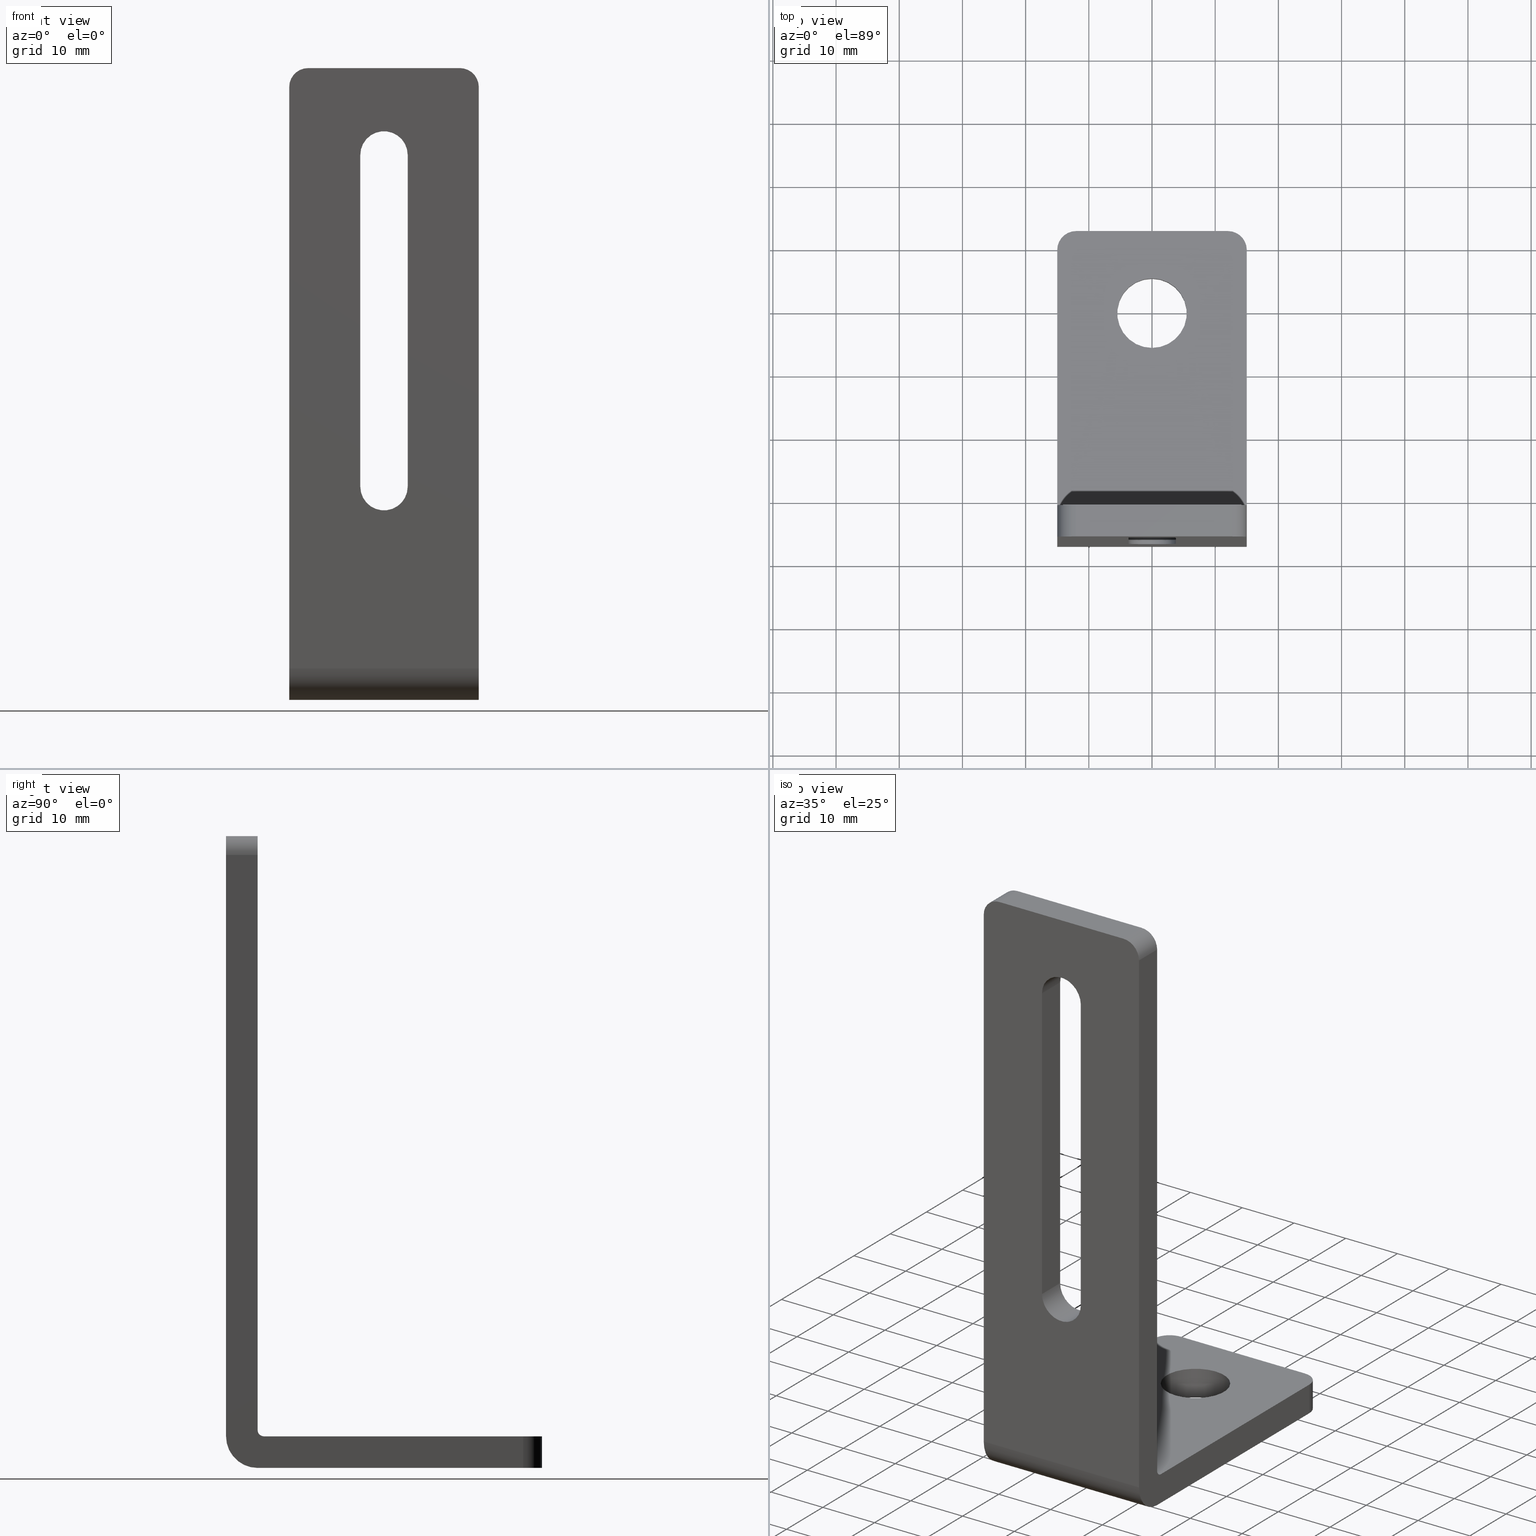
[diagram: canonical four-view strip — front | top / right | iso, engineering-drawing reading convention]
A machine part, canonical four-view strip (front | top / right | iso — engineering-drawing reading convention). The complete STEP part file that produces these views, byte-faithful:
ISO-10303-21;
HEADER;
/****************************************************************
 * Generated by software with PDE/Lib inside                    *
 * PDElib Version v4.4, created Mon 02/23/2004                  *
 * International Technegroup Inc. (www.iti-oh.com)              *
 ****************************************************************/
FILE_DESCRIPTION(('STEP AP203'),'2;1');
FILE_NAME('17.004.00.stp','2011-03-28T17:23:40',(''),(''),'2009.3.110','THINKDESIGN','');
FILE_SCHEMA(('CONFIG_CONTROL_DESIGN'));
ENDSEC;
DATA;
#2=CARTESIAN_POINT('',(-15.0,-30.999999999998181,6.000000000000002));
#3=DIRECTION('',(-1.0,6.123234E-017,-3.749399E-033));
#4=DIRECTION('',(-1.232595E-032,-2.449294E-016,-1.0));
#5=AXIS2_PLACEMENT_3D('',#2,#3,#4);
#6=CYLINDRICAL_SURFACE('',#5,1.000000000000078);
#7=CARTESIAN_POINT('',(-15.0,-30.999999999998181,5.000000000000002));
#8=VERTEX_POINT('',#7);
#9=CARTESIAN_POINT('',(-15.0,-31.999999999998181,6.000000000000002));
#10=VERTEX_POINT('',#9);
#11=CARTESIAN_POINT('',(-15.0,-30.999999999998181,6.000000000000002));
#12=DIRECTION('',(-1.0,6.123234E-017,-3.749399E-033));
#13=DIRECTION('',(6.123234E-017,1.0,-6.123234E-017));
#14=AXIS2_PLACEMENT_3D('',#11,#12,#13);
#15=CIRCLE('',#14,1.000000000000078);
#16=EDGE_CURVE('',#8,#10,#15,.T.);
#17=ORIENTED_EDGE('',*,*,#16,.T.);
#18=CARTESIAN_POINT('',(15.0,-31.999999999998181,6.000000000000002));
#19=VERTEX_POINT('',#18);
#20=CARTESIAN_POINT('',(-15.0,-31.999999999998181,6.000000000000002));
#21=DIRECTION('',(1.0,0.0,0.0));
#22=VECTOR('',#21,30.0);
#23=LINE('',#20,#22);
#24=EDGE_CURVE('',#10,#19,#23,.T.);
#25=ORIENTED_EDGE('',*,*,#24,.T.);
#26=CARTESIAN_POINT('',(15.0,-30.999999999998181,5.000000000000002));
#27=VERTEX_POINT('',#26);
#28=CARTESIAN_POINT('',(15.0,-30.999999999998181,6.000000000000002));
#29=DIRECTION('',(-1.0,6.123234E-017,-3.749399E-033));
#30=DIRECTION('',(6.123234E-017,1.0,-6.123234E-017));
#31=AXIS2_PLACEMENT_3D('',#28,#29,#30);
#32=CIRCLE('',#31,1.000000000000078);
#33=EDGE_CURVE('',#27,#19,#32,.T.);
#34=ORIENTED_EDGE('',*,*,#33,.F.);
#35=CARTESIAN_POINT('',(-15.0,-30.999999999998181,5.000000000000002));
#36=DIRECTION('',(1.0,0.0,0.0));
#37=VECTOR('',#36,30.0);
#38=LINE('',#35,#37);
#39=EDGE_CURVE('',#8,#27,#38,.T.);
#40=ORIENTED_EDGE('',*,*,#39,.F.);
#41=EDGE_LOOP('',(#17,#25,#34,#40));
#42=FACE_OUTER_BOUND('',#41,.T.);
#43=ADVANCED_FACE('',(#42),#6,.F.);
#44=CARTESIAN_POINT('',(-15.0,-31.999999999998181,5.000000000000002));
#45=DIRECTION('',(1.0,-6.123234E-017,3.749399E-033));
#46=DIRECTION('',(6.123234E-017,1.0,-6.123234E-017));
#47=AXIS2_PLACEMENT_3D('',#44,#45,#46);
#48=CYLINDRICAL_SURFACE('',#47,5.0);
#49=CARTESIAN_POINT('',(-15.0,-36.999999999998181,5.000000000000003));
#50=VERTEX_POINT('',#49);
#51=CARTESIAN_POINT('',(-15.0,-31.999999999998181,1.959435E-015));
#52=VERTEX_POINT('',#51);
#53=CARTESIAN_POINT('',(-15.0,-31.999999999998181,5.000000000000002));
#54=DIRECTION('',(1.0,-6.123234E-017,3.749399E-033));
#55=DIRECTION('',(6.123234E-017,1.0,-6.123234E-017));
#56=AXIS2_PLACEMENT_3D('',#53,#54,#55);
#57=CIRCLE('',#56,5.0);
#58=EDGE_CURVE('',#50,#52,#57,.T.);
#59=ORIENTED_EDGE('',*,*,#58,.T.);
#60=CARTESIAN_POINT('',(15.0,-31.999999999998181,1.959435E-015));
#61=VERTEX_POINT('',#60);
#62=CARTESIAN_POINT('',(-15.0,-31.999999999998181,1.959435E-015));
#63=DIRECTION('',(1.0,0.0,0.0));
#64=VECTOR('',#63,30.0);
#65=LINE('',#62,#64);
#66=EDGE_CURVE('',#52,#61,#65,.T.);
#67=ORIENTED_EDGE('',*,*,#66,.T.);
#68=CARTESIAN_POINT('',(15.0,-36.999999999998181,5.000000000000003));
#69=VERTEX_POINT('',#68);
#70=CARTESIAN_POINT('',(15.0,-31.999999999998181,5.000000000000002));
#71=DIRECTION('',(1.0,-6.123234E-017,3.749399E-033));
#72=DIRECTION('',(6.123234E-017,1.0,-6.123234E-017));
#73=AXIS2_PLACEMENT_3D('',#70,#71,#72);
#74=CIRCLE('',#73,5.0);
#75=EDGE_CURVE('',#69,#61,#74,.T.);
#76=ORIENTED_EDGE('',*,*,#75,.F.);
#77=CARTESIAN_POINT('',(-15.0,-36.999999999998181,5.000000000000003));
#78=DIRECTION('',(1.0,0.0,0.0));
#79=VECTOR('',#78,30.0);
#80=LINE('',#77,#79);
#81=EDGE_CURVE('',#50,#69,#80,.T.);
#82=ORIENTED_EDGE('',*,*,#81,.F.);
#83=EDGE_LOOP('',(#59,#67,#76,#82));
#84=FACE_OUTER_BOUND('',#83,.T.);
#85=ADVANCED_FACE('',(#84),#48,.T.);
#86=CARTESIAN_POINT('',(0.0,18.000663757326041,33.750000000000000));
#87=DIRECTION('',(0.0,-1.0,6.123234E-017));
#88=DIRECTION('',(-1.0,-7.498799E-033,-1.224647E-016));
#89=AXIS2_PLACEMENT_3D('',#86,#87,#88);
#90=CYLINDRICAL_SURFACE('',#89,3.750000000000000);
#91=CARTESIAN_POINT('',(-3.750000000000000,-31.999999999998170,33.750000000000000));
#92=VERTEX_POINT('',#91);
#93=CARTESIAN_POINT('',(-3.750000000000000,-36.999999999998181,33.750000000000000));
#94=VERTEX_POINT('',#93);
#95=CARTESIAN_POINT('',(-3.750000000000000,-31.999999999998170,33.750000000000000));
#96=DIRECTION('',(0.0,-1.0,0.0));
#97=VECTOR('',#96,5.000000000000011);
#98=LINE('',#95,#97);
#99=EDGE_CURVE('',#92,#94,#98,.T.);
#100=ORIENTED_EDGE('',*,*,#99,.T.);
#101=CARTESIAN_POINT('',(3.750000000000000,-36.999999999998181,33.750000000000000));
#102=VERTEX_POINT('',#101);
#103=CARTESIAN_POINT('',(0.0,-36.999999999998181,33.750000000000000));
#104=DIRECTION('',(0.0,-1.0,6.123234E-017));
#105=DIRECTION('',(1.0,0.0,0.0));
#106=AXIS2_PLACEMENT_3D('',#103,#104,#105);
#107=CIRCLE('',#106,3.750000000000000);
#108=EDGE_CURVE('',#94,#102,#107,.T.);
#109=ORIENTED_EDGE('',*,*,#108,.T.);
#110=CARTESIAN_POINT('',(3.750000000000000,-31.999999999998170,33.750000000000000));
#111=VERTEX_POINT('',#110);
#112=CARTESIAN_POINT('',(3.750000000000000,-31.999999999998170,33.750000000000000));
#113=DIRECTION('',(0.0,-1.0,0.0));
#114=VECTOR('',#113,5.000000000000011);
#115=LINE('',#112,#114);
#116=EDGE_CURVE('',#111,#102,#115,.T.);
#117=ORIENTED_EDGE('',*,*,#116,.F.);
#118=CARTESIAN_POINT('',(0.0,-31.999999999998170,33.750000000000000));
#119=DIRECTION('',(0.0,1.0,-6.123234E-017));
#120=DIRECTION('',(1.0,0.0,0.0));
#121=AXIS2_PLACEMENT_3D('',#118,#119,#120);
#122=CIRCLE('',#121,3.750000000000000);
#123=EDGE_CURVE('',#111,#92,#122,.T.);
#124=ORIENTED_EDGE('',*,*,#123,.T.);
#125=EDGE_LOOP('',(#100,#109,#117,#124));
#126=FACE_OUTER_BOUND('',#125,.T.);
#127=ADVANCED_FACE('',(#126),#90,.F.);
#128=CARTESIAN_POINT('',(3.750000000000000,18.000663757326041,33.750000000000000));
#129=DIRECTION('',(1.0,0.0,0.0));
#130=DIRECTION('',(0.0,0.0,1.0));
#131=AXIS2_PLACEMENT_3D('',#128,#129,#130);
#132=PLANE('',#131);
#133=ORIENTED_EDGE('',*,*,#116,.T.);
#134=CARTESIAN_POINT('',(3.750000000000000,-36.999999999998174,86.250000000000000));
#135=VERTEX_POINT('',#134);
#136=CARTESIAN_POINT('',(3.750000000000000,-36.999999999998181,33.750000000000000));
#137=DIRECTION('',(0.0,0.0,1.0));
#138=VECTOR('',#137,52.500000000000000);
#139=LINE('',#136,#138);
#140=EDGE_CURVE('',#102,#135,#139,.T.);
#141=ORIENTED_EDGE('',*,*,#140,.T.);
#142=CARTESIAN_POINT('',(3.750000000000000,-31.999999999998170,86.250000000000000));
#143=VERTEX_POINT('',#142);
#144=CARTESIAN_POINT('',(3.750000000000000,-31.999999999998170,86.250000000000000));
#145=DIRECTION('',(0.0,-1.0,0.0));
#146=VECTOR('',#145,5.000000000000011);
#147=LINE('',#144,#146);
#148=EDGE_CURVE('',#143,#135,#147,.T.);
#149=ORIENTED_EDGE('',*,*,#148,.F.);
#150=CARTESIAN_POINT('',(3.750000000000000,-31.999999999998170,33.750000000000000));
#151=DIRECTION('',(0.0,0.0,1.0));
#152=VECTOR('',#151,52.500000000000000);
#153=LINE('',#150,#152);
#154=EDGE_CURVE('',#111,#143,#153,.T.);
#155=ORIENTED_EDGE('',*,*,#154,.F.);
#156=EDGE_LOOP('',(#133,#141,#149,#155));
#157=FACE_OUTER_BOUND('',#156,.T.);
#158=ADVANCED_FACE('',(#157),#132,.F.);
#159=CARTESIAN_POINT('',(0.0,18.000663757326041,86.250000000000000));
#160=DIRECTION('',(0.0,-1.0,6.123234E-017));
#161=DIRECTION('',(1.0,0.0,0.0));
#162=AXIS2_PLACEMENT_3D('',#159,#160,#161);
#163=CYLINDRICAL_SURFACE('',#162,3.750000000000000);
#164=ORIENTED_EDGE('',*,*,#148,.T.);
#165=CARTESIAN_POINT('',(-3.750000000000000,-36.999999999998174,86.250000000000000));
#166=VERTEX_POINT('',#165);
#167=CARTESIAN_POINT('',(0.0,-36.999999999998174,86.250000000000000));
#168=DIRECTION('',(0.0,-1.0,6.123234E-017));
#169=DIRECTION('',(1.0,0.0,0.0));
#170=AXIS2_PLACEMENT_3D('',#167,#168,#169);
#171=CIRCLE('',#170,3.750000000000000);
#172=EDGE_CURVE('',#135,#166,#171,.T.);
#173=ORIENTED_EDGE('',*,*,#172,.T.);
#174=CARTESIAN_POINT('',(-3.750000000000000,-31.999999999998170,86.250000000000000));
#175=VERTEX_POINT('',#174);
#176=CARTESIAN_POINT('',(-3.750000000000000,-31.999999999998170,86.250000000000000));
#177=DIRECTION('',(0.0,-1.0,0.0));
#178=VECTOR('',#177,5.000000000000011);
#179=LINE('',#176,#178);
#180=EDGE_CURVE('',#175,#166,#179,.T.);
#181=ORIENTED_EDGE('',*,*,#180,.F.);
#182=CARTESIAN_POINT('',(0.0,-31.999999999998170,86.250000000000000));
#183=DIRECTION('',(0.0,1.0,-6.123234E-017));
#184=DIRECTION('',(1.0,0.0,0.0));
#185=AXIS2_PLACEMENT_3D('',#182,#183,#184);
#186=CIRCLE('',#185,3.750000000000000);
#187=EDGE_CURVE('',#175,#143,#186,.T.);
#188=ORIENTED_EDGE('',*,*,#187,.T.);
#189=EDGE_LOOP('',(#164,#173,#181,#188));
#190=FACE_OUTER_BOUND('',#189,.T.);
#191=ADVANCED_FACE('',(#190),#163,.F.);
#192=CARTESIAN_POINT('',(-3.750000000000000,18.000663757326041,86.250000000000000));
#193=DIRECTION('',(-1.0,0.0,0.0));
#194=DIRECTION('',(0.0,0.0,-1.0));
#195=AXIS2_PLACEMENT_3D('',#192,#193,#194);
#196=PLANE('',#195);
#197=CARTESIAN_POINT('',(-3.750000000000000,-31.999999999998170,33.750000000000000));
#198=DIRECTION('',(0.0,0.0,1.0));
#199=VECTOR('',#198,52.500000000000000);
#200=LINE('',#197,#199);
#201=EDGE_CURVE('',#92,#175,#200,.T.);
#202=ORIENTED_EDGE('',*,*,#201,.T.);
#203=ORIENTED_EDGE('',*,*,#180,.T.);
#204=CARTESIAN_POINT('',(-3.750000000000000,-36.999999999998181,33.750000000000000));
#205=DIRECTION('',(0.0,0.0,1.0));
#206=VECTOR('',#205,52.500000000000000);
#207=LINE('',#204,#206);
#208=EDGE_CURVE('',#94,#166,#207,.T.);
#209=ORIENTED_EDGE('',*,*,#208,.F.);
#210=ORIENTED_EDGE('',*,*,#99,.F.);
#211=EDGE_LOOP('',(#202,#203,#209,#210));
#212=FACE_OUTER_BOUND('',#211,.T.);
#213=ADVANCED_FACE('',(#212),#196,.F.);
#214=CARTESIAN_POINT('',(0.0,3.061617E-016,5.0));
#215=DIRECTION('',(0.0,6.123234E-017,1.0));
#216=DIRECTION('',(-6.123234E-017,-1.0,6.123234E-017));
#217=AXIS2_PLACEMENT_3D('',#214,#215,#216);
#218=CYLINDRICAL_SURFACE('',#217,5.500000000000000);
#219=CARTESIAN_POINT('',(0.0,-5.500000000000000,5.0));
#220=VERTEX_POINT('',#219);
#221=CARTESIAN_POINT('',(0.0,-5.500000000000000,3.367779E-016));
#222=VERTEX_POINT('',#221);
#223=CARTESIAN_POINT('',(0.0,-5.500000000000000,5.0));
#224=DIRECTION('',(0.0,0.0,-1.0));
#225=VECTOR('',#224,5.0);
#226=LINE('',#223,#225);
#227=EDGE_CURVE('',#220,#222,#226,.T.);
#228=ORIENTED_EDGE('',*,*,#227,.T.);
#229=CARTESIAN_POINT('',(3.367779E-016,5.500000000000000,-3.367779E-016));
#230=VERTEX_POINT('',#229);
#231=CARTESIAN_POINT('',(0.0,0.0,0.0));
#232=DIRECTION('',(0.0,6.123234E-017,1.0));
#233=DIRECTION('',(-6.123234E-017,-1.0,6.123234E-017));
#234=AXIS2_PLACEMENT_3D('',#231,#232,#233);
#235=CIRCLE('',#234,5.500000000000000);
#236=EDGE_CURVE('',#230,#222,#235,.T.);
#237=ORIENTED_EDGE('',*,*,#236,.F.);
#238=CARTESIAN_POINT('',(0.0,0.0,0.0));
#239=DIRECTION('',(0.0,6.123234E-017,1.0));
#240=DIRECTION('',(-6.123234E-017,-1.0,6.123234E-017));
#241=AXIS2_PLACEMENT_3D('',#238,#239,#240);
#242=CIRCLE('',#241,5.500000000000000);
#243=EDGE_CURVE('',#222,#230,#242,.T.);
#244=ORIENTED_EDGE('',*,*,#243,.F.);
#245=ORIENTED_EDGE('',*,*,#227,.F.);
#246=CARTESIAN_POINT('',(3.367779E-016,5.500000000000000,5.0));
#247=VERTEX_POINT('',#246);
#248=CARTESIAN_POINT('',(-2.736911E-048,3.061617E-016,5.0));
#249=DIRECTION('',(0.0,6.123234E-017,1.0));
#250=DIRECTION('',(-6.123234E-017,-1.0,6.123234E-017));
#251=AXIS2_PLACEMENT_3D('',#248,#249,#250);
#252=CIRCLE('',#251,5.500000000000000);
#253=EDGE_CURVE('',#220,#247,#252,.T.);
#254=ORIENTED_EDGE('',*,*,#253,.T.);
#255=CARTESIAN_POINT('',(-2.736911E-048,3.061617E-016,5.0));
#256=DIRECTION('',(0.0,6.123234E-017,1.0));
#257=DIRECTION('',(-6.123234E-017,-1.0,6.123234E-017));
#258=AXIS2_PLACEMENT_3D('',#255,#256,#257);
#259=CIRCLE('',#258,5.500000000000000);
#260=EDGE_CURVE('',#247,#220,#259,.T.);
#261=ORIENTED_EDGE('',*,*,#260,.T.);
#262=EDGE_LOOP('',(#228,#237,#244,#245,#254,#261));
#263=FACE_OUTER_BOUND('',#262,.T.);
#264=ADVANCED_FACE('',(#263),#218,.F.);
#265=CARTESIAN_POINT('',(-15.0,13.000000000001819,4.999999999999999));
#266=DIRECTION('',(0.0,0.0,1.0));
#267=DIRECTION('',(0.0,-1.0,0.0));
#268=AXIS2_PLACEMENT_3D('',#265,#266,#267);
#269=PLANE('',#268);
#270=CARTESIAN_POINT('',(12.0,13.000000000001819,4.999999999999999));
#271=VERTEX_POINT('',#270);
#272=CARTESIAN_POINT('',(15.0,10.000000000001819,4.999999999999999));
#273=VERTEX_POINT('',#272);
#274=CARTESIAN_POINT('',(12.0,10.000000000001819,4.999999999999999));
#275=DIRECTION('',(0.0,-6.123234E-017,-1.0));
#276=DIRECTION('',(0.0,1.0,-6.123234E-017));
#277=AXIS2_PLACEMENT_3D('',#274,#275,#276);
#278=CIRCLE('',#277,3.0);
#279=EDGE_CURVE('',#271,#273,#278,.T.);
#280=ORIENTED_EDGE('',*,*,#279,.F.);
#281=CARTESIAN_POINT('',(-12.0,13.000000000001819,4.999999999999999));
#282=VERTEX_POINT('',#281);
#283=CARTESIAN_POINT('',(-12.0,13.000000000001819,4.999999999999999));
#284=DIRECTION('',(1.0,0.0,0.0));
#285=VECTOR('',#284,24.0);
#286=LINE('',#283,#285);
#287=EDGE_CURVE('',#282,#271,#286,.T.);
#288=ORIENTED_EDGE('',*,*,#287,.F.);
#289=CARTESIAN_POINT('',(-15.0,10.000000000001819,4.999999999999999));
#290=VERTEX_POINT('',#289);
#291=CARTESIAN_POINT('',(-12.0,10.000000000001819,4.999999999999999));
#292=DIRECTION('',(0.0,6.123234E-017,1.0));
#293=DIRECTION('',(0.0,1.0,-6.123234E-017));
#294=AXIS2_PLACEMENT_3D('',#291,#292,#293);
#295=CIRCLE('',#294,3.0);
#296=EDGE_CURVE('',#282,#290,#295,.T.);
#297=ORIENTED_EDGE('',*,*,#296,.T.);
#298=CARTESIAN_POINT('',(-14.999999999999998,10.000000000001819,4.999999999999999));
#299=DIRECTION('',(0.0,-1.0,0.0));
#300=VECTOR('',#299,41.0);
#301=LINE('',#298,#300);
#302=EDGE_CURVE('',#290,#8,#301,.T.);
#303=ORIENTED_EDGE('',*,*,#302,.T.);
#304=ORIENTED_EDGE('',*,*,#39,.T.);
#305=CARTESIAN_POINT('',(15.000000000000002,10.000000000001819,4.999999999999999));
#306=DIRECTION('',(0.0,-1.0,0.0));
#307=VECTOR('',#306,41.0);
#308=LINE('',#305,#307);
#309=EDGE_CURVE('',#273,#27,#308,.T.);
#310=ORIENTED_EDGE('',*,*,#309,.F.);
#311=EDGE_LOOP('',(#280,#288,#297,#303,#304,#310));
#312=FACE_OUTER_BOUND('',#311,.T.);
#313=ORIENTED_EDGE('',*,*,#260,.F.);
#314=ORIENTED_EDGE('',*,*,#253,.F.);
#315=EDGE_LOOP('',(#313,#314));
#316=FACE_BOUND('',#315,.T.);
#317=ADVANCED_FACE('',(#312,#316),#269,.T.);
#318=CARTESIAN_POINT('',(12.0,10.000000000001819,-6.123234E-016));
#319=DIRECTION('',(0.0,-6.123234E-017,-1.0));
#320=DIRECTION('',(0.0,1.0,-6.123234E-017));
#321=AXIS2_PLACEMENT_3D('',#318,#319,#320);
#322=CYLINDRICAL_SURFACE('',#321,3.0);
#323=CARTESIAN_POINT('',(12.0,13.000000000001819,-7.960204E-016));
#324=VERTEX_POINT('',#323);
#325=CARTESIAN_POINT('',(12.0,13.000000000001819,-7.960204E-016));
#326=DIRECTION('',(0.0,0.0,1.0));
#327=VECTOR('',#326,5.0);
#328=LINE('',#325,#327);
#329=EDGE_CURVE('',#324,#271,#328,.T.);
#330=ORIENTED_EDGE('',*,*,#329,.T.);
#331=ORIENTED_EDGE('',*,*,#279,.T.);
#332=CARTESIAN_POINT('',(15.0,10.000000000001819,-6.123234E-016));
#333=VERTEX_POINT('',#332);
#334=CARTESIAN_POINT('',(15.0,10.000000000001819,-6.123234E-016));
#335=DIRECTION('',(0.0,0.0,1.0));
#336=VECTOR('',#335,5.0);
#337=LINE('',#334,#336);
#338=EDGE_CURVE('',#333,#273,#337,.T.);
#339=ORIENTED_EDGE('',*,*,#338,.F.);
#340=CARTESIAN_POINT('',(12.0,10.000000000001819,-6.123234E-016));
#341=DIRECTION('',(0.0,-6.123234E-017,-1.0));
#342=DIRECTION('',(0.0,1.0,-6.123234E-017));
#343=AXIS2_PLACEMENT_3D('',#340,#341,#342);
#344=CIRCLE('',#343,3.0);
#345=EDGE_CURVE('',#324,#333,#344,.T.);
#346=ORIENTED_EDGE('',*,*,#345,.F.);
#347=EDGE_LOOP('',(#330,#331,#339,#346));
#348=FACE_OUTER_BOUND('',#347,.T.);
#349=ADVANCED_FACE('',(#348),#322,.T.);
#350=CARTESIAN_POINT('',(-15.0,-31.999999999998181,1.959435E-015));
#351=DIRECTION('',(0.0,0.0,-1.0));
#352=DIRECTION('',(0.0,1.0,0.0));
#353=AXIS2_PLACEMENT_3D('',#350,#351,#352);
#354=PLANE('',#353);
#355=ORIENTED_EDGE('',*,*,#66,.F.);
#356=CARTESIAN_POINT('',(-15.0,10.000000000001819,-6.123234E-016));
#357=VERTEX_POINT('',#356);
#358=CARTESIAN_POINT('',(-15.000000000000004,-31.999999999998181,1.959435E-015));
#359=DIRECTION('',(0.0,1.0,0.0));
#360=VECTOR('',#359,42.0);
#361=LINE('',#358,#360);
#362=EDGE_CURVE('',#52,#357,#361,.T.);
#363=ORIENTED_EDGE('',*,*,#362,.T.);
#364=CARTESIAN_POINT('',(-12.0,13.000000000001819,-7.960204E-016));
#365=VERTEX_POINT('',#364);
#366=CARTESIAN_POINT('',(-12.0,10.000000000001819,-6.123234E-016));
#367=DIRECTION('',(0.0,6.123234E-017,1.0));
#368=DIRECTION('',(0.0,1.0,-6.123234E-017));
#369=AXIS2_PLACEMENT_3D('',#366,#367,#368);
#370=CIRCLE('',#369,3.0);
#371=EDGE_CURVE('',#365,#357,#370,.T.);
#372=ORIENTED_EDGE('',*,*,#371,.F.);
#373=CARTESIAN_POINT('',(-12.0,13.000000000001819,-7.960204E-016));
#374=DIRECTION('',(1.0,0.0,0.0));
#375=VECTOR('',#374,24.0);
#376=LINE('',#373,#375);
#377=EDGE_CURVE('',#365,#324,#376,.T.);
#378=ORIENTED_EDGE('',*,*,#377,.T.);
#379=ORIENTED_EDGE('',*,*,#345,.T.);
#380=CARTESIAN_POINT('',(14.999999999999996,-31.999999999998181,1.959435E-015));
#381=DIRECTION('',(0.0,1.0,0.0));
#382=VECTOR('',#381,42.0);
#383=LINE('',#380,#382);
#384=EDGE_CURVE('',#61,#333,#383,.T.);
#385=ORIENTED_EDGE('',*,*,#384,.F.);
#386=EDGE_LOOP('',(#355,#363,#372,#378,#379,#385));
#387=FACE_OUTER_BOUND('',#386,.T.);
#388=ORIENTED_EDGE('',*,*,#243,.T.);
#389=ORIENTED_EDGE('',*,*,#236,.T.);
#390=EDGE_LOOP('',(#388,#389));
#391=FACE_BOUND('',#390,.T.);
#392=ADVANCED_FACE('',(#387,#391),#354,.T.);
#393=CARTESIAN_POINT('',(-12.0,10.000000000001819,-6.123234E-016));
#394=DIRECTION('',(0.0,6.123234E-017,1.0));
#395=DIRECTION('',(0.0,1.0,-6.123234E-017));
#396=AXIS2_PLACEMENT_3D('',#393,#394,#395);
#397=CYLINDRICAL_SURFACE('',#396,3.0);
#398=ORIENTED_EDGE('',*,*,#371,.T.);
#399=CARTESIAN_POINT('',(-15.0,10.000000000001819,-6.123234E-016));
#400=DIRECTION('',(0.0,0.0,1.0));
#401=VECTOR('',#400,5.0);
#402=LINE('',#399,#401);
#403=EDGE_CURVE('',#357,#290,#402,.T.);
#404=ORIENTED_EDGE('',*,*,#403,.T.);
#405=ORIENTED_EDGE('',*,*,#296,.F.);
#406=CARTESIAN_POINT('',(-12.0,13.000000000001819,-7.960204E-016));
#407=DIRECTION('',(0.0,0.0,1.0));
#408=VECTOR('',#407,5.0);
#409=LINE('',#406,#408);
#410=EDGE_CURVE('',#365,#282,#409,.T.);
#411=ORIENTED_EDGE('',*,*,#410,.F.);
#412=EDGE_LOOP('',(#398,#404,#405,#411));
#413=FACE_OUTER_BOUND('',#412,.T.);
#414=ADVANCED_FACE('',(#413),#397,.T.);
#415=CARTESIAN_POINT('',(-15.0,13.000000000001819,-7.960204E-016));
#416=DIRECTION('',(0.0,1.0,0.0));
#417=DIRECTION('',(0.0,0.0,1.0));
#418=AXIS2_PLACEMENT_3D('',#415,#416,#417);
#419=PLANE('',#418);
#420=ORIENTED_EDGE('',*,*,#410,.T.);
#421=ORIENTED_EDGE('',*,*,#287,.T.);
#422=ORIENTED_EDGE('',*,*,#329,.F.);
#423=ORIENTED_EDGE('',*,*,#377,.F.);
#424=EDGE_LOOP('',(#420,#421,#422,#423));
#425=FACE_OUTER_BOUND('',#424,.T.);
#426=ADVANCED_FACE('',(#425),#419,.T.);
#427=CARTESIAN_POINT('',(-15.0,-36.999999999998174,100.0));
#428=DIRECTION('',(0.0,-1.0,0.0));
#429=DIRECTION('',(0.0,0.0,-1.0));
#430=AXIS2_PLACEMENT_3D('',#427,#428,#429);
#431=PLANE('',#430);
#432=CARTESIAN_POINT('',(12.0,-36.999999999998174,100.0));
#433=VERTEX_POINT('',#432);
#434=CARTESIAN_POINT('',(15.0,-36.999999999998174,97.0));
#435=VERTEX_POINT('',#434);
#436=CARTESIAN_POINT('',(12.0,-36.999999999998174,97.0));
#437=DIRECTION('',(0.0,1.0,-1.224647E-016));
#438=DIRECTION('',(0.0,1.224647E-016,1.0));
#439=AXIS2_PLACEMENT_3D('',#436,#437,#438);
#440=CIRCLE('',#439,3.0);
#441=EDGE_CURVE('',#433,#435,#440,.T.);
#442=ORIENTED_EDGE('',*,*,#441,.F.);
#443=CARTESIAN_POINT('',(-12.0,-36.999999999998174,100.0));
#444=VERTEX_POINT('',#443);
#445=CARTESIAN_POINT('',(-12.0,-36.999999999998174,100.0));
#446=DIRECTION('',(1.0,0.0,0.0));
#447=VECTOR('',#446,24.0);
#448=LINE('',#445,#447);
#449=EDGE_CURVE('',#444,#433,#448,.T.);
#450=ORIENTED_EDGE('',*,*,#449,.F.);
#451=CARTESIAN_POINT('',(-15.0,-36.999999999998174,97.0));
#452=VERTEX_POINT('',#451);
#453=CARTESIAN_POINT('',(-12.0,-36.999999999998174,97.0));
#454=DIRECTION('',(0.0,-1.0,2.465190E-032));
#455=DIRECTION('',(0.0,2.465190E-032,1.0));
#456=AXIS2_PLACEMENT_3D('',#453,#454,#455);
#457=CIRCLE('',#456,3.0);
#458=EDGE_CURVE('',#444,#452,#457,.T.);
#459=ORIENTED_EDGE('',*,*,#458,.T.);
#460=CARTESIAN_POINT('',(-15.0,-36.999999999998174,97.0));
#461=DIRECTION('',(0.0,0.0,-1.0));
#462=VECTOR('',#461,92.0);
#463=LINE('',#460,#462);
#464=EDGE_CURVE('',#452,#50,#463,.T.);
#465=ORIENTED_EDGE('',*,*,#464,.T.);
#466=ORIENTED_EDGE('',*,*,#81,.T.);
#467=CARTESIAN_POINT('',(15.0,-36.999999999998174,97.0));
#468=DIRECTION('',(0.0,0.0,-1.0));
#469=VECTOR('',#468,92.0);
#470=LINE('',#467,#469);
#471=EDGE_CURVE('',#435,#69,#470,.T.);
#472=ORIENTED_EDGE('',*,*,#471,.F.);
#473=EDGE_LOOP('',(#442,#450,#459,#465,#466,#472));
#474=FACE_OUTER_BOUND('',#473,.T.);
#475=ORIENTED_EDGE('',*,*,#208,.T.);
#476=ORIENTED_EDGE('',*,*,#172,.F.);
#477=ORIENTED_EDGE('',*,*,#140,.F.);
#478=ORIENTED_EDGE('',*,*,#108,.F.);
#479=EDGE_LOOP('',(#475,#476,#477,#478));
#480=FACE_BOUND('',#479,.T.);
#481=ADVANCED_FACE('',(#474,#480),#431,.T.);
#482=CARTESIAN_POINT('',(12.0,-31.999999999998174,97.0));
#483=DIRECTION('',(0.0,1.0,-1.224647E-016));
#484=DIRECTION('',(0.0,1.224647E-016,1.0));
#485=AXIS2_PLACEMENT_3D('',#482,#483,#484);
#486=CYLINDRICAL_SURFACE('',#485,3.0);
#487=CARTESIAN_POINT('',(12.0,-31.999999999998170,100.0));
#488=VERTEX_POINT('',#487);
#489=CARTESIAN_POINT('',(12.0,-31.999999999998170,100.0));
#490=DIRECTION('',(0.0,-1.0,0.0));
#491=VECTOR('',#490,5.000000000000004);
#492=LINE('',#489,#491);
#493=EDGE_CURVE('',#488,#433,#492,.T.);
#494=ORIENTED_EDGE('',*,*,#493,.T.);
#495=ORIENTED_EDGE('',*,*,#441,.T.);
#496=CARTESIAN_POINT('',(15.0,-31.999999999998174,97.0));
#497=VERTEX_POINT('',#496);
#498=CARTESIAN_POINT('',(15.0,-31.999999999998174,97.0));
#499=DIRECTION('',(0.0,-1.0,0.0));
#500=VECTOR('',#499,5.0);
#501=LINE('',#498,#500);
#502=EDGE_CURVE('',#497,#435,#501,.T.);
#503=ORIENTED_EDGE('',*,*,#502,.F.);
#504=CARTESIAN_POINT('',(12.0,-31.999999999998174,97.0));
#505=DIRECTION('',(0.0,1.0,-1.224647E-016));
#506=DIRECTION('',(0.0,1.224647E-016,1.0));
#507=AXIS2_PLACEMENT_3D('',#504,#505,#506);
#508=CIRCLE('',#507,3.0);
#509=EDGE_CURVE('',#488,#497,#508,.T.);
#510=ORIENTED_EDGE('',*,*,#509,.F.);
#511=EDGE_LOOP('',(#494,#495,#503,#510));
#512=FACE_OUTER_BOUND('',#511,.T.);
#513=ADVANCED_FACE('',(#512),#486,.T.);
#514=CARTESIAN_POINT('',(-15.0,-31.999999999998181,6.000000000000002));
#515=DIRECTION('',(0.0,1.0,0.0));
#516=DIRECTION('',(0.0,0.0,1.0));
#517=AXIS2_PLACEMENT_3D('',#514,#515,#516);
#518=PLANE('',#517);
#519=ORIENTED_EDGE('',*,*,#24,.F.);
#520=CARTESIAN_POINT('',(-15.0,-31.999999999998174,97.0));
#521=VERTEX_POINT('',#520);
#522=CARTESIAN_POINT('',(-15.0,-31.999999999998181,6.0));
#523=DIRECTION('',(0.0,0.0,1.0));
#524=VECTOR('',#523,91.0);
#525=LINE('',#522,#524);
#526=EDGE_CURVE('',#10,#521,#525,.T.);
#527=ORIENTED_EDGE('',*,*,#526,.T.);
#528=CARTESIAN_POINT('',(-12.0,-31.999999999998174,100.0));
#529=VERTEX_POINT('',#528);
#530=CARTESIAN_POINT('',(-12.0,-31.999999999998174,97.0));
#531=DIRECTION('',(0.0,-1.0,2.465190E-032));
#532=DIRECTION('',(0.0,2.465190E-032,1.0));
#533=AXIS2_PLACEMENT_3D('',#530,#531,#532);
#534=CIRCLE('',#533,3.0);
#535=EDGE_CURVE('',#529,#521,#534,.T.);
#536=ORIENTED_EDGE('',*,*,#535,.F.);
#537=CARTESIAN_POINT('',(-12.0,-31.999999999998174,100.0));
#538=DIRECTION('',(1.0,0.0,0.0));
#539=VECTOR('',#538,24.0);
#540=LINE('',#537,#539);
#541=EDGE_CURVE('',#529,#488,#540,.T.);
#542=ORIENTED_EDGE('',*,*,#541,.T.);
#543=ORIENTED_EDGE('',*,*,#509,.T.);
#544=CARTESIAN_POINT('',(15.0,-31.999999999998181,6.0));
#545=DIRECTION('',(0.0,0.0,1.0));
#546=VECTOR('',#545,91.0);
#547=LINE('',#544,#546);
#548=EDGE_CURVE('',#19,#497,#547,.T.);
#549=ORIENTED_EDGE('',*,*,#548,.F.);
#550=EDGE_LOOP('',(#519,#527,#536,#542,#543,#549));
#551=FACE_OUTER_BOUND('',#550,.T.);
#552=ORIENTED_EDGE('',*,*,#154,.T.);
#553=ORIENTED_EDGE('',*,*,#187,.F.);
#554=ORIENTED_EDGE('',*,*,#201,.F.);
#555=ORIENTED_EDGE('',*,*,#123,.F.);
#556=EDGE_LOOP('',(#552,#553,#554,#555));
#557=FACE_BOUND('',#556,.T.);
#558=ADVANCED_FACE('',(#551,#557),#518,.T.);
#559=CARTESIAN_POINT('',(-12.0,-31.999999999998174,97.0));
#560=DIRECTION('',(0.0,-1.0,2.465190E-032));
#561=DIRECTION('',(0.0,2.465190E-032,1.0));
#562=AXIS2_PLACEMENT_3D('',#559,#560,#561);
#563=CYLINDRICAL_SURFACE('',#562,3.0);
#564=ORIENTED_EDGE('',*,*,#535,.T.);
#565=CARTESIAN_POINT('',(-15.0,-31.999999999998174,97.0));
#566=DIRECTION('',(0.0,-1.0,0.0));
#567=VECTOR('',#566,5.0);
#568=LINE('',#565,#567);
#569=EDGE_CURVE('',#521,#452,#568,.T.);
#570=ORIENTED_EDGE('',*,*,#569,.T.);
#571=ORIENTED_EDGE('',*,*,#458,.F.);
#572=CARTESIAN_POINT('',(-12.0,-31.999999999998174,100.0));
#573=DIRECTION('',(0.0,-1.0,0.0));
#574=VECTOR('',#573,5.0);
#575=LINE('',#572,#574);
#576=EDGE_CURVE('',#529,#444,#575,.T.);
#577=ORIENTED_EDGE('',*,*,#576,.F.);
#578=EDGE_LOOP('',(#564,#570,#571,#577));
#579=FACE_OUTER_BOUND('',#578,.T.);
#580=ADVANCED_FACE('',(#579),#563,.T.);
#581=CARTESIAN_POINT('',(15.0,-42.000120064318253,-10.000120064432847));
#582=DIRECTION('',(1.0,0.0,0.0));
#583=DIRECTION('',(0.0,1.0,0.0));
#584=AXIS2_PLACEMENT_3D('',#581,#582,#583);
#585=PLANE('',#584);
#586=ORIENTED_EDGE('',*,*,#33,.T.);
#587=ORIENTED_EDGE('',*,*,#548,.T.);
#588=ORIENTED_EDGE('',*,*,#502,.T.);
#589=ORIENTED_EDGE('',*,*,#471,.T.);
#590=ORIENTED_EDGE('',*,*,#75,.T.);
#591=ORIENTED_EDGE('',*,*,#384,.T.);
#592=ORIENTED_EDGE('',*,*,#338,.T.);
#593=ORIENTED_EDGE('',*,*,#309,.T.);
#594=EDGE_LOOP('',(#586,#587,#588,#589,#590,#591,#592,#593));
#595=FACE_OUTER_BOUND('',#594,.T.);
#596=ADVANCED_FACE('',(#595),#585,.T.);
#597=CARTESIAN_POINT('',(-15.0,-31.999999999998174,100.0));
#598=DIRECTION('',(0.0,0.0,1.0));
#599=DIRECTION('',(0.0,-1.0,0.0));
#600=AXIS2_PLACEMENT_3D('',#597,#598,#599);
#601=PLANE('',#600);
#602=ORIENTED_EDGE('',*,*,#576,.T.);
#603=ORIENTED_EDGE('',*,*,#449,.T.);
#604=ORIENTED_EDGE('',*,*,#493,.F.);
#605=ORIENTED_EDGE('',*,*,#541,.F.);
#606=EDGE_LOOP('',(#602,#603,#604,#605));
#607=FACE_OUTER_BOUND('',#606,.T.);
#608=ADVANCED_FACE('',(#607),#601,.T.);
#609=CARTESIAN_POINT('',(-15.0,-42.000120064318253,-10.000120064432847));
#610=DIRECTION('',(1.0,0.0,0.0));
#611=DIRECTION('',(0.0,1.0,0.0));
#612=AXIS2_PLACEMENT_3D('',#609,#610,#611);
#613=PLANE('',#612);
#614=ORIENTED_EDGE('',*,*,#302,.F.);
#615=ORIENTED_EDGE('',*,*,#403,.F.);
#616=ORIENTED_EDGE('',*,*,#362,.F.);
#617=ORIENTED_EDGE('',*,*,#58,.F.);
#618=ORIENTED_EDGE('',*,*,#464,.F.);
#619=ORIENTED_EDGE('',*,*,#569,.F.);
#620=ORIENTED_EDGE('',*,*,#526,.F.);
#621=ORIENTED_EDGE('',*,*,#16,.F.);
#622=EDGE_LOOP('',(#614,#615,#616,#617,#618,#619,#620,#621));
#623=FACE_OUTER_BOUND('',#622,.T.);
#624=ADVANCED_FACE('',(#623),#613,.F.);
#625=CLOSED_SHELL('',(#43,#85,#127,#158,#191,#213,#264,#317,#349,#392,#414,#426,#481,#513,#558,#580,#596,#608,#624));
#626=MANIFOLD_SOLID_BREP('',#625);
#632=(NAMED_UNIT(*)PLANE_ANGLE_UNIT()SI_UNIT($,.RADIAN.));
#633=DIMENSIONAL_EXPONENTS(0.0,0.0,0.0,0.0,0.0,0.0,0.0);
#634=PLANE_ANGLE_MEASURE_WITH_UNIT(PLANE_ANGLE_MEASURE(0.017453292500000),#632);
#638=(CONVERSION_BASED_UNIT('DEGREE',#634)NAMED_UNIT(#633)PLANE_ANGLE_UNIT());
#642=(NAMED_UNIT(*)SI_UNIT($,.STERADIAN.)SOLID_ANGLE_UNIT());
#646=(LENGTH_UNIT()NAMED_UNIT(*)SI_UNIT(.MILLI.,.METRE.));
#648=UNCERTAINTY_MEASURE_WITH_UNIT(LENGTH_MEASURE(0.001000000000000),#646,'DISTANCE_ACCURACY_VALUE','');
#650=(GEOMETRIC_REPRESENTATION_CONTEXT(3)GLOBAL_UNCERTAINTY_ASSIGNED_CONTEXT((#648))GLOBAL_UNIT_ASSIGNED_CONTEXT((#638,#642,#646))REPRESENTATION_CONTEXT('thinkdesign','2009.3.110'));
#651=ADVANCED_BREP_SHAPE_REPRESENTATION('',(#626),#650);
#652=APPLICATION_CONTEXT('configuration controlled 3D designs of mechanical parts and assemblies');
#653=APPLICATION_PROTOCOL_DEFINITION('International Standard','config_control_design',1995,#652);
#654=MECHANICAL_CONTEXT('None',#652,'mechanical');
#655=PRODUCT('None','None','None',(#654));
#656=PRODUCT_RELATED_PRODUCT_CATEGORY('detail',$,(#655));
#657=PRODUCT_CATEGORY('part',$);
#658=PRODUCT_CATEGORY_RELATIONSHIP('None','None',#657,#656);
#659=PERSON('PERSON1','None','None',$,$,$);
#660=ORGANIZATION('','None','None');
#661=PERSON_AND_ORGANIZATION(#659,#660);
#662=PERSON_AND_ORGANIZATION_ROLE('design_owner');
#663=CC_DESIGN_PERSON_AND_ORGANIZATION_ASSIGNMENT(#661,#662,(#655));
#664=PRODUCT_DEFINITION_FORMATION_WITH_SPECIFIED_SOURCE('None','None',#655,.NOT_KNOWN.);
#665=PERSON('PERSON2','None','None',$,$,$);
#666=ORGANIZATION('','None','None');
#667=PERSON_AND_ORGANIZATION(#665,#666);
#668=PERSON_AND_ORGANIZATION_ROLE('creator');
#669=CC_DESIGN_PERSON_AND_ORGANIZATION_ASSIGNMENT(#667,#668,(#664));
#670=PERSON('PERSON3','None','None',$,$,$);
#671=ORGANIZATION('','None','None');
#672=PERSON_AND_ORGANIZATION(#670,#671);
#673=PERSON_AND_ORGANIZATION_ROLE('part_supplier');
#674=CC_DESIGN_PERSON_AND_ORGANIZATION_ASSIGNMENT(#672,#673,(#664));
#675=APPROVAL_STATUS('approved');
#676=APPROVAL(#675,'None');
#677=PERSON('PERSON4','None','None',$,$,$);
#678=ORGANIZATION('','None','None');
#679=PERSON_AND_ORGANIZATION(#677,#678);
#680=APPROVAL_ROLE('None');
#681=APPROVAL_PERSON_ORGANIZATION(#679,#676,#680);
#682=CALENDAR_DATE(2011,28,3);
#683=COORDINATED_UNIVERSAL_TIME_OFFSET(0,0,.AHEAD.);
#684=LOCAL_TIME(17,23,40.0,#683);
#685=DATE_AND_TIME(#682,#684);
#686=APPROVAL_DATE_TIME(#685,#676);
#687=CC_DESIGN_APPROVAL(#676,(#664));
#688=SECURITY_CLASSIFICATION_LEVEL('unclassified');
#689=SECURITY_CLASSIFICATION('None','None',#688);
#690=CC_DESIGN_SECURITY_CLASSIFICATION(#689,(#664));
#691=APPROVAL_STATUS('approved');
#692=APPROVAL(#691,'None');
#693=PERSON('PERSON5','None','None',$,$,$);
#694=ORGANIZATION('','None','None');
#695=PERSON_AND_ORGANIZATION(#693,#694);
#696=APPROVAL_ROLE('None');
#697=APPROVAL_PERSON_ORGANIZATION(#695,#692,#696);
#698=CALENDAR_DATE(2011,28,3);
#699=COORDINATED_UNIVERSAL_TIME_OFFSET(0,0,.AHEAD.);
#700=LOCAL_TIME(17,23,40.0,#699);
#701=DATE_AND_TIME(#698,#700);
#702=APPROVAL_DATE_TIME(#701,#692);
#703=CC_DESIGN_APPROVAL(#692,(#689));
#704=PERSON('PERSON6','None','None',$,$,$);
#705=ORGANIZATION('','None','None');
#706=PERSON_AND_ORGANIZATION(#704,#705);
#707=PERSON_AND_ORGANIZATION_ROLE('classification_officer');
#708=CC_DESIGN_PERSON_AND_ORGANIZATION_ASSIGNMENT(#706,#707,(#689));
#709=DATE_TIME_ROLE('classification_date');
#710=CALENDAR_DATE(2011,28,3);
#711=COORDINATED_UNIVERSAL_TIME_OFFSET(0,0,.AHEAD.);
#712=LOCAL_TIME(17,23,40.0,#711);
#713=DATE_AND_TIME(#710,#712);
#714=CC_DESIGN_DATE_AND_TIME_ASSIGNMENT(#713,#709,(#689));
#715=DESIGN_CONTEXT('part definition',#652,'design');
#716=DOCUMENT_TYPE('cad_filename');
#717=DOCUMENT('None','None','None',#716);
#718=PRODUCT_DEFINITION_WITH_ASSOCIATED_DOCUMENTS('None','None',#664,#715,(#717));
#719=PERSON('PERSON7','None','None',$,$,$);
#720=ORGANIZATION('','None','None');
#721=PERSON_AND_ORGANIZATION(#719,#720);
#722=PERSON_AND_ORGANIZATION_ROLE('creator');
#723=CC_DESIGN_PERSON_AND_ORGANIZATION_ASSIGNMENT(#721,#722,(#718));
#724=DATE_TIME_ROLE('creation_date');
#725=CALENDAR_DATE(2011,28,3);
#726=COORDINATED_UNIVERSAL_TIME_OFFSET(0,0,.AHEAD.);
#727=LOCAL_TIME(17,23,40.0,#726);
#728=DATE_AND_TIME(#725,#727);
#729=CC_DESIGN_DATE_AND_TIME_ASSIGNMENT(#728,#724,(#718));
#730=APPROVAL_STATUS('approved');
#731=APPROVAL(#730,'None');
#732=PERSON('PERSON8','None','None',$,$,$);
#733=ORGANIZATION('','None','None');
#734=PERSON_AND_ORGANIZATION(#732,#733);
#735=APPROVAL_ROLE('None');
#736=APPROVAL_PERSON_ORGANIZATION(#734,#731,#735);
#737=CALENDAR_DATE(2011,28,3);
#738=COORDINATED_UNIVERSAL_TIME_OFFSET(0,0,.AHEAD.);
#739=LOCAL_TIME(17,23,40.0,#738);
#740=DATE_AND_TIME(#737,#739);
#741=APPROVAL_DATE_TIME(#740,#731);
#742=CC_DESIGN_APPROVAL(#731,(#718));
#743=PRODUCT_DEFINITION_SHAPE('None','None',#718);
#744=SHAPE_DEFINITION_REPRESENTATION(#743,#651);
#745=DIMENSIONAL_EXPONENTS(0.0,0.0,0.0,0.0,0.0,0.0,0.0);
#746=DIMENSIONAL_EXPONENTS(1.0,0.0,0.0,0.0,0.0,0.0,0.0);
ENDSEC;
END-ISO-10303-21;
